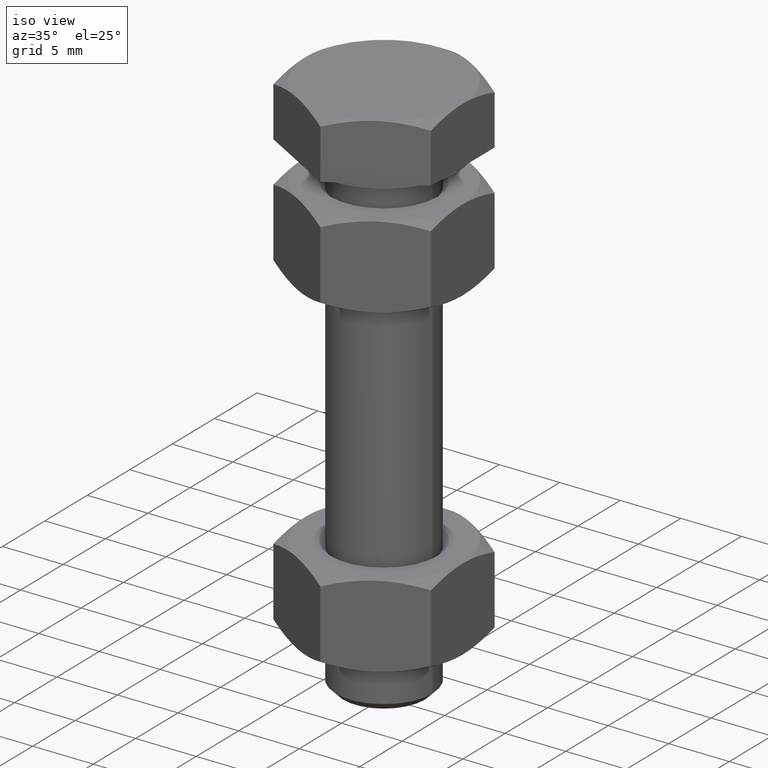
[diagram: clean part render]
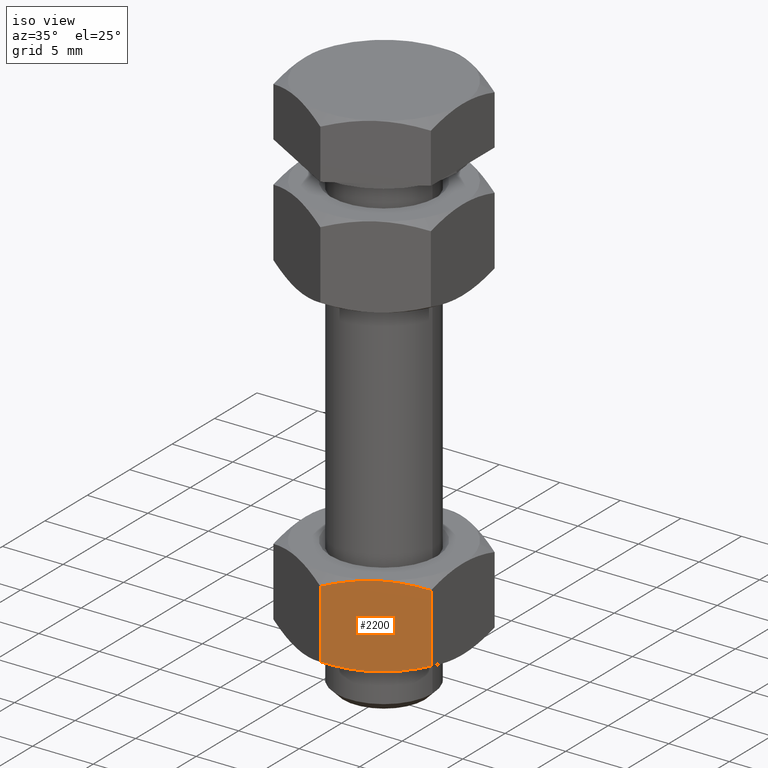
[diagram: same view with one face highlighted and labeled with its STEP entity id]
A machine part, iso view. The second image highlights one B-rep face of the part: STEP entity #2200.
In plain terms, the highlighted planar face has unit normal (0.5, -0.866, 0).
Its self-contained STEP definition (entity closure, byte-faithful):
#1609=CARTESIAN_POINT('',(3.249999999999989,-5.629165124598837,-35.800000000000004));
#1610=VERTEX_POINT('',#1609);
#1701=CARTESIAN_POINT('',(3.249999999999990,-5.629165124598837,-29.000000000000004));
#1702=VERTEX_POINT('',#1701);
#1834=CARTESIAN_POINT('',(6.500000000000021,-3.752776749732536,-29.580556583600771));
#1835=VERTEX_POINT('',#1834);
#1836=CARTESIAN_POINT('',(6.500000000000021,-3.752776749732536,-29.580556583600771));
#1837=CARTESIAN_POINT('',(4.758330249197730,-4.758330249197666,-29.000000000000004));
#1838=CARTESIAN_POINT('',(3.249999999999990,-5.629165124598837,-29.000000000000004));
#1846=(BOUNDED_CURVE()B_SPLINE_CURVE(2,(#1836,#1837,#1838),.UNSPECIFIED.,.F.,.U.)B_SPLINE_CURVE_WITH_KNOTS((3,3),(0.0,0.380711317203912),.UNSPECIFIED.)CURVE()GEOMETRIC_REPRESENTATION_ITEM()RATIONAL_B_SPLINE_CURVE((1.0,1.037954849302109,1.0))REPRESENTATION_ITEM(''));
#1847=EDGE_CURVE('',#1835,#1702,#1846,.T.);
#1894=CARTESIAN_POINT('',(1.593331E-014,-7.505553499465138,-29.580556583600771));
#1895=VERTEX_POINT('',#1894);
#1909=CARTESIAN_POINT('',(3.249999999999990,-5.629165124598837,-29.000000000000004));
#1910=CARTESIAN_POINT('',(1.741669750802250,-6.500000000000005,-29.000000000000004));
#1911=CARTESIAN_POINT('',(-4.307176E-014,-7.505553499465138,-29.580556583600771));
#1919=(BOUNDED_CURVE()B_SPLINE_CURVE(2,(#1909,#1910,#1911),.UNSPECIFIED.,.F.,.U.)B_SPLINE_CURVE_WITH_KNOTS((3,3),(0.380711317203912,0.761422634407824),.UNSPECIFIED.)CURVE()GEOMETRIC_REPRESENTATION_ITEM()RATIONAL_B_SPLINE_CURVE((1.0,1.037954849302108,1.0))REPRESENTATION_ITEM(''));
#1920=EDGE_CURVE('',#1702,#1895,#1919,.T.);
#1940=CARTESIAN_POINT('',(4.275968E-015,-7.505553499465131,-35.219443416399237));
#1941=VERTEX_POINT('',#1940);
#1955=CARTESIAN_POINT('',(1.593331E-014,-7.505553499465138,-29.580556583600771));
#1956=DIRECTION('',(0.0,0.0,-1.0));
#1957=VECTOR('',#1956,5.638886832798466);
#1958=LINE('',#1955,#1957);
#1959=EDGE_CURVE('',#1895,#1941,#1958,.T.);
#2059=CARTESIAN_POINT('',(6.500000000000012,-3.752776749732540,-35.219443416399237));
#2060=VERTEX_POINT('',#2059);
#2074=CARTESIAN_POINT('',(3.249999999999989,-5.629165124598837,-35.800000000000004));
#2075=CARTESIAN_POINT('',(4.758330249197718,-4.758330249197672,-35.800000000000004));
#2076=CARTESIAN_POINT('',(6.500000000000012,-3.752776749732541,-35.219443416399237));
#2084=(BOUNDED_CURVE()B_SPLINE_CURVE(2,(#2074,#2075,#2076),.UNSPECIFIED.,.F.,.U.)B_SPLINE_CURVE_WITH_KNOTS((3,3),(0.380711317203911,0.761422634407821),.UNSPECIFIED.)CURVE()GEOMETRIC_REPRESENTATION_ITEM()RATIONAL_B_SPLINE_CURVE((1.0,1.037954849302131,1.0))REPRESENTATION_ITEM(''));
#2085=EDGE_CURVE('',#1610,#2060,#2084,.T.);
#2098=CARTESIAN_POINT('',(-3.287563E-014,-7.505553499465131,-35.219443416399237));
#2099=CARTESIAN_POINT('',(1.741669750802262,-6.499999999999999,-35.800000000000004));
#2100=CARTESIAN_POINT('',(3.249999999999989,-5.629165124598837,-35.800000000000004));
#2108=(BOUNDED_CURVE()B_SPLINE_CURVE(2,(#2098,#2099,#2100),.UNSPECIFIED.,.F.,.U.)B_SPLINE_CURVE_WITH_KNOTS((3,3),(0.0,0.380711317203911),.UNSPECIFIED.)CURVE()GEOMETRIC_REPRESENTATION_ITEM()RATIONAL_B_SPLINE_CURVE((1.0,1.037954849302117,1.0))REPRESENTATION_ITEM(''));
#2109=EDGE_CURVE('',#1941,#1610,#2108,.T.);
#2182=CARTESIAN_POINT('',(-1.293249E-014,-7.505553499465120,-29.000000000000004));
#2183=DIRECTION('',(0.500000000000000,-0.866025403784439,2.002386E-017));
#2184=DIRECTION('',(0.0,0.0,-1.0));
#2185=AXIS2_PLACEMENT_3D('',#2182,#2183,#2184);
#2186=PLANE('',#2185);
#2187=ORIENTED_EDGE('',*,*,#1920,.T.);
#2188=ORIENTED_EDGE('',*,*,#1959,.T.);
#2189=ORIENTED_EDGE('',*,*,#2109,.T.);
#2190=ORIENTED_EDGE('',*,*,#2085,.T.);
#2191=CARTESIAN_POINT('',(6.500000000000021,-3.752776749732536,-29.580556583600771));
#2192=DIRECTION('',(0.0,0.0,-1.0));
#2193=VECTOR('',#2192,5.638886832798466);
#2194=LINE('',#2191,#2193);
#2195=EDGE_CURVE('',#1835,#2060,#2194,.T.);
#2196=ORIENTED_EDGE('',*,*,#2195,.F.);
#2197=ORIENTED_EDGE('',*,*,#1847,.T.);
#2198=EDGE_LOOP('',(#2187,#2188,#2189,#2190,#2196,#2197));
#2199=FACE_OUTER_BOUND('',#2198,.T.);
#2200=ADVANCED_FACE('',(#2199),#2186,.T.);